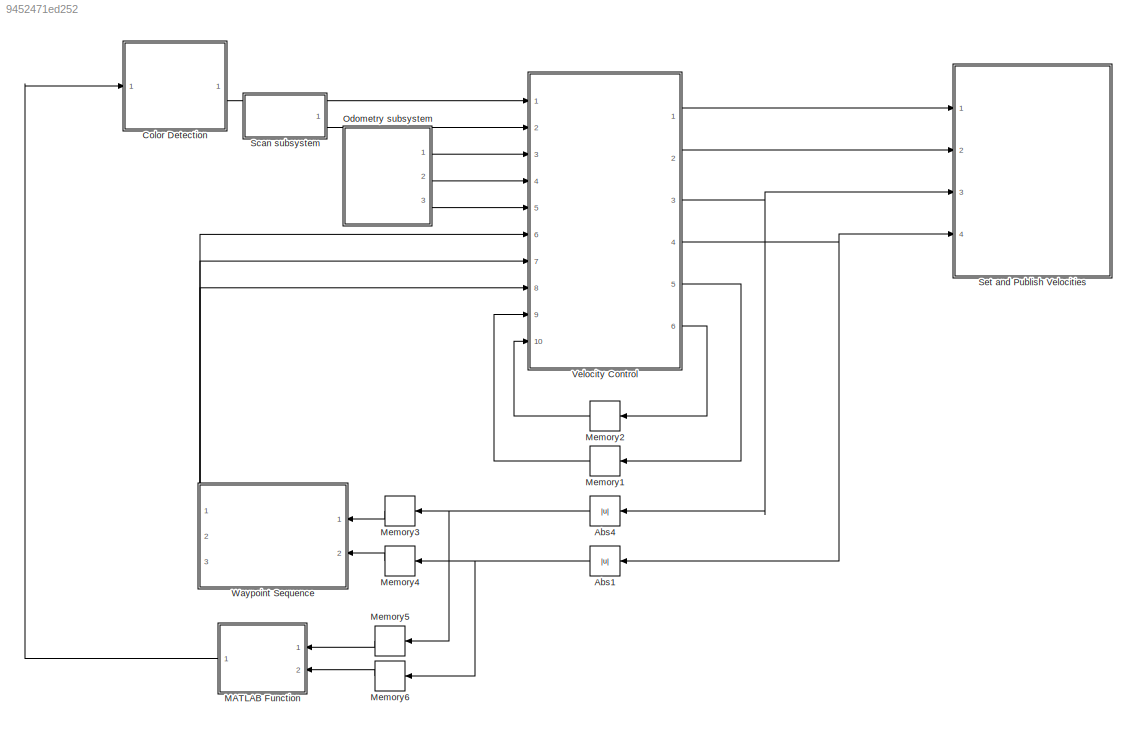
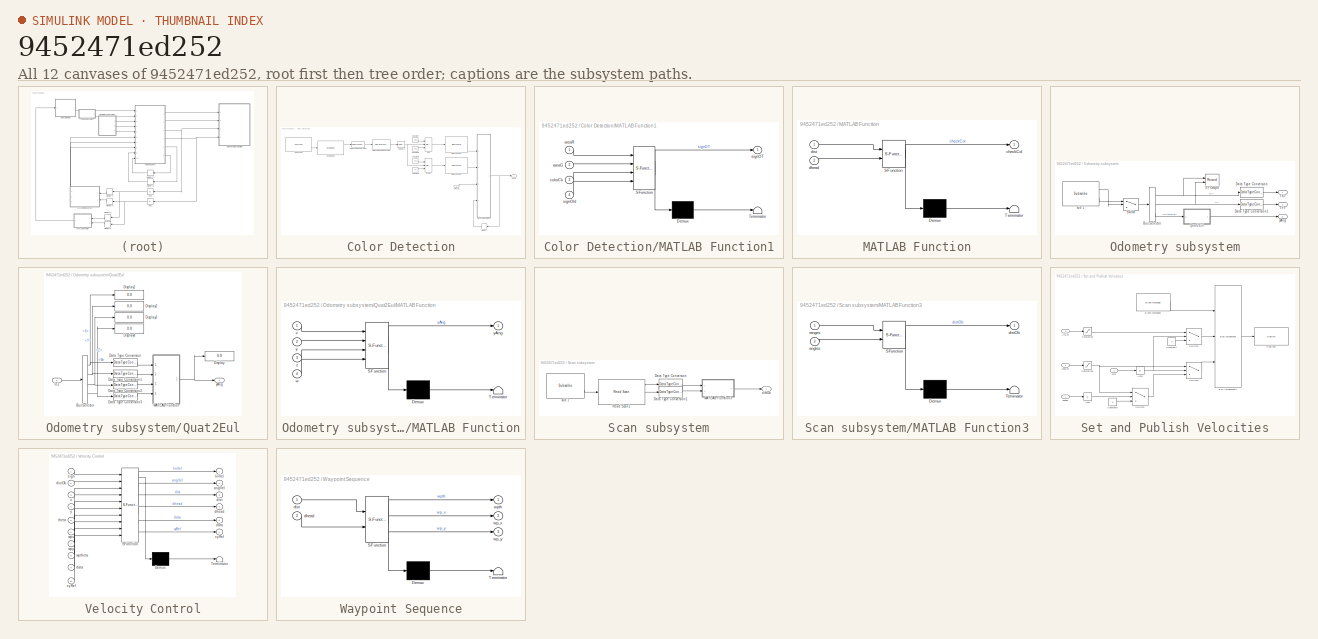
[diagram: thumbnail index - all 12 canvases of the model, root first then tree order]
MODEL slx_9452471ed252
KIND model
CONFIG AbsTol = auto
CONFIG EnableMultiTasking = off
CONFIG FixedStep = 0.05
CONFIG MaxStep = auto
CONFIG MinStep = auto
CONFIG RelTol = 1e-3
CONFIG SampleTimeConstraint = Unconstrained
CONFIG SolverName = FixedStepAuto
CONFIG StartTime = 0.0
CONFIG StopTime = inf
WORKSPACE source: mxarray member
WORKSPACE SL_ROS_VariableLengthArrays_MaxSizes: object (value not decoded)
BLOCK [Abs] Abs1
  SaturateOnIntegerOverflow = off
BLOCK [Abs] Abs4
  SaturateOnIntegerOverflow = off
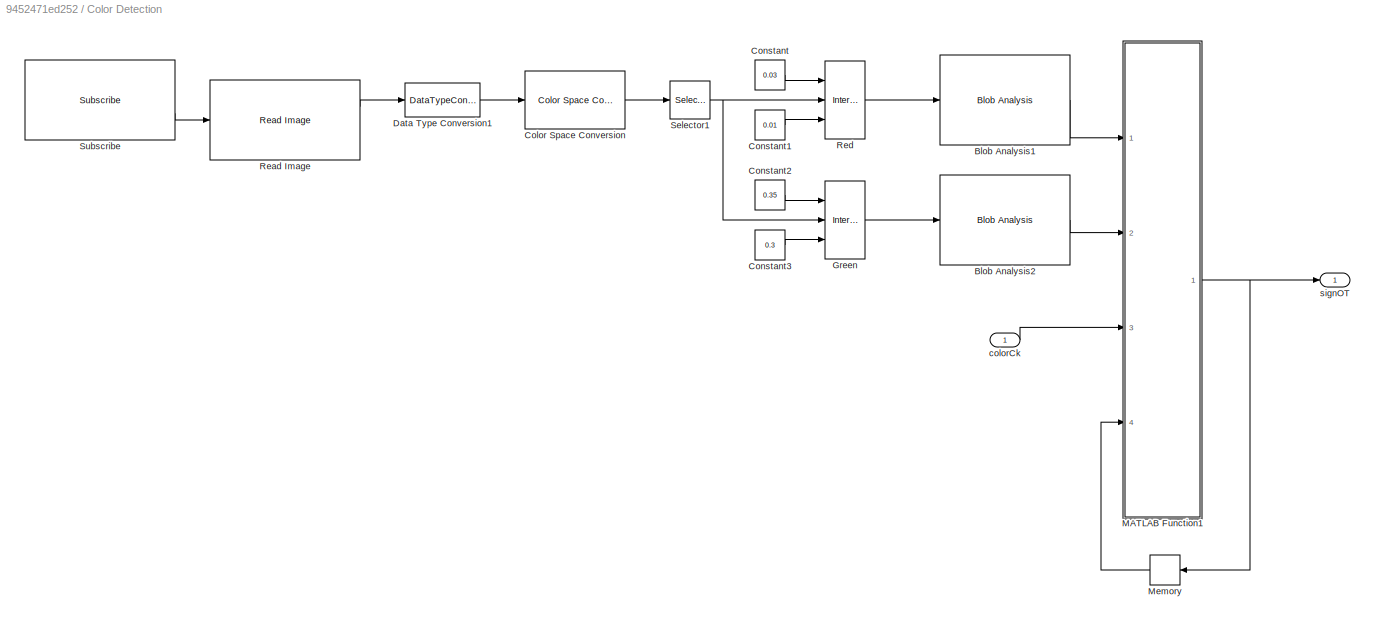
BLOCK [SubSystem] Color Detection
  Ports = [1, 1]
  RequestExecContextInheritance = off
BLOCK [Reference] Color Detection/Blob Analysis1  REF=visionstatistics/Blob Analysis
  Ports = [1, 1]
  SourceBlock = visionstatistics/Blob Analysis
  SourceProductBaseCode = VP
  SourceType = Blob Analysis
  Tag = vipblks_row_conv
BLOCK [Reference] Color Detection/Blob Analysis2  REF=visionstatistics/Blob Analysis
  Ports = [1, 1]
  SourceBlock = visionstatistics/Blob Analysis
  SourceProductBaseCode = VP
  SourceType = Blob Analysis
  Tag = vipblks_row_conv
BLOCK [Reference] Color Detection/Color Space Conversion  REF=visionconversions/Color Space
 Conversion
  Ports = [1, 1]
  SourceBlock = visionconversions/Color Space\n Conversion
  SourceProductBaseCode = VP
  SourceType = Color Space Conversion
BLOCK [Constant] Color Detection/Constant
  Value = 0.03
BLOCK [Constant] Color Detection/Constant1
  Value = 0.01
BLOCK [Constant] Color Detection/Constant2
  Value = 0.35
BLOCK [Constant] Color Detection/Constant3
  Value = 0.3
BLOCK [DataTypeConversion] Color Detection/Data Type Conversion1
  RndMeth = Floor
  SaturateOnIntegerOverflow = off
BLOCK [Reference] Color Detection/Green  REF=simulink/Logic and Bit
Operations/Interval Test
Dynamic
  Ports = [3, 1]
  SourceBlock = simulink/Logic and Bit\nOperations/Interval Test\nDynamic
  SourceProductBaseCode = SL
  SourceType = Interval Test Dynamic
BLOCK [SubSystem] Color Detection/MATLAB Function1
  ErrorFcn = Stateflow.Translate.translate
  PermitHierarchicalResolution = ExplicitOnly
  Ports = [4, 1]
  RequestExecContextInheritance = off
  SFBlockType = MATLAB Function
  TreatAsAtomicUnit = on
BLOCK [Demux] Color Detection/MATLAB Function1/ Demux 
  Outputs = 1
  Ports = [1, 1]
BLOCK [S-Function] Color Detection/MATLAB Function1/ SFunction 
  EnableBusSupport = off
  FunctionName = sf_sfun
  PortCounts = [4 2]
  Ports = [4, 2]
  SFcnIsStateOwnerBlock = off
  SFunctionDeploymentMode = off
  Tag = Stateflow S-Function 1
BLOCK [Terminator] Color Detection/MATLAB Function1/ Terminator 
BLOCK [Inport] Color Detection/MATLAB Function1/areaG
  Port = 2
BLOCK [Inport] Color Detection/MATLAB Function1/areaR
BLOCK [Inport] Color Detection/MATLAB Function1/colorCk
  Port = 3
BLOCK [Outport] Color Detection/MATLAB Function1/signOT
BLOCK [Inport] Color Detection/MATLAB Function1/signOld
  Port = 4
BLOCK [Memory] Color Detection/Memory
BLOCK [Reference] Color Detection/Read Image  REF=robotlib/Read Image
  Ports = [1, 2]
  SourceBlock = robotlib/Read Image
  SourceProductBaseCode = RR
  SourceType = ros.slros.internal.block.ReadImage
BLOCK [Reference] Color Detection/Red  REF=simulink/Logic and Bit
Operations/Interval Test
Dynamic
  Ports = [3, 1]
  SourceBlock = simulink/Logic and Bit\nOperations/Interval Test\nDynamic
  SourceProductBaseCode = SL
  SourceType = Interval Test Dynamic
BLOCK [Selector] Color Detection/Selector1
  IndexOptions = Index vector (dialog),Index vector (dialog),Index vector (dialog)
  Indices = [1:480],[1:640],1
  InputPortWidth = 3
  NumberOfDimensions = 3
  OutputSizes = 1,1,1
  Ports = [1, 1]
BLOCK [Reference] Color Detection/Subscribe  REF=robotlib/Subscribe
  Ports = [0, 2]
  SourceBlock = robotlib/Subscribe
  SourceProductBaseCode = RR
  SourceType = ROS Subscribe
BLOCK [Inport] Color Detection/colorCk
BLOCK [Outport] Color Detection/signOT
BLOCK [SubSystem] MATLAB Function
  ErrorFcn = Stateflow.Translate.translate
  PermitHierarchicalResolution = ExplicitOnly
  Ports = [2, 1]
  RequestExecContextInheritance = off
  SFBlockType = MATLAB Function
  TreatAsAtomicUnit = on
BLOCK [Demux] MATLAB Function/ Demux 
  Outputs = 1
  Ports = [1, 1]
BLOCK [S-Function] MATLAB Function/ SFunction 
  EnableBusSupport = off
  FunctionName = sf_sfun
  PortCounts = [2 2]
  Ports = [2, 2]
  SFcnIsStateOwnerBlock = off
  SFunctionDeploymentMode = off
  Tag = Stateflow S-Function 5
BLOCK [Terminator] MATLAB Function/ Terminator 
BLOCK [Outport] MATLAB Function/checkCol
BLOCK [Inport] MATLAB Function/dhead
  Port = 2
BLOCK [Inport] MATLAB Function/dist
BLOCK [Memory] Memory1
  InitialCondition = [0; 0; 0; 1; 0; 0]
BLOCK [Memory] Memory2
  InitialCondition = [0 0]
BLOCK [Memory] Memory3
  InitialCondition = 3
BLOCK [Memory] Memory4
  InitialCondition = 1
BLOCK [Memory] Memory5
BLOCK [Memory] Memory6
BLOCK [SubSystem] Odometry subsystem
  Ports = [0, 3]
  RequestExecContextInheritance = off
BLOCK [Outport] Odometry subsystem/<X>
BLOCK [Outport] Odometry subsystem/<Y>
  Port = 2
BLOCK [BusSelector] Odometry subsystem/Bus Selector
  OutputSignals = Pose.Pose.Position.X,Pose.Pose.Position.Y,Pose.Pose.Orientation
  Ports = [1, 3]
BLOCK [DataTypeConversion] Odometry subsystem/Data Type Conversion
  OutDataTypeStr = double
  RndMeth = Floor
  SaturateOnIntegerOverflow = off
BLOCK [DataTypeConversion] Odometry subsystem/Data Type Conversion1
  OutDataTypeStr = double
  RndMeth = Floor
  SaturateOnIntegerOverflow = off
BLOCK [SubSystem] Odometry subsystem/Quat2Eul
  Ports = [1, 1]
  RequestExecContextInheritance = off
BLOCK [BusSelector] Odometry subsystem/Quat2Eul/Bus Selector
  OutputSignals = X,Y,Z,W
  Ports = [1, 4]
BLOCK [DataTypeConversion] Odometry subsystem/Quat2Eul/Data Type Conversion
  OutDataTypeStr = double
  RndMeth = Floor
  SaturateOnIntegerOverflow = off
BLOCK [DataTypeConversion] Odometry subsystem/Quat2Eul/Data Type Conversion1
  OutDataTypeStr = double
  RndMeth = Floor
  SaturateOnIntegerOverflow = off
BLOCK [DataTypeConversion] Odometry subsystem/Quat2Eul/Data Type Conversion2
  OutDataTypeStr = double
  RndMeth = Floor
  SaturateOnIntegerOverflow = off
BLOCK [DataTypeConversion] Odometry subsystem/Quat2Eul/Data Type Conversion3
  OutDataTypeStr = double
  RndMeth = Floor
  SaturateOnIntegerOverflow = off
BLOCK [Display] Odometry subsystem/Quat2Eul/Display
  Decimation = 1
  Ports = [1]
BLOCK [Display] Odometry subsystem/Quat2Eul/Display1
  Decimation = 1
  Ports = [1]
BLOCK [Display] Odometry subsystem/Quat2Eul/Display2
  Decimation = 1
  Ports = [1]
BLOCK [Display] Odometry subsystem/Quat2Eul/Display3
  Decimation = 1
  Ports = [1]
BLOCK [Display] Odometry subsystem/Quat2Eul/Display4
  Decimation = 1
  Ports = [1]
BLOCK [Inport] Odometry subsystem/Quat2Eul/In1
BLOCK [SubSystem] Odometry subsystem/Quat2Eul/MATLAB Function
  ErrorFcn = Stateflow.Translate.translate
  PermitHierarchicalResolution = ExplicitOnly
  Ports = [4, 1]
  RequestExecContextInheritance = off
  SFBlockType = MATLAB Function
  TreatAsAtomicUnit = on
BLOCK [Demux] Odometry subsystem/Quat2Eul/MATLAB Function/ Demux 
  Outputs = 1
  Ports = [1, 1]
BLOCK [S-Function] Odometry subsystem/Quat2Eul/MATLAB Function/ SFunction 
  EnableBusSupport = off
  FunctionName = sf_sfun
  PortCounts = [4 2]
  Ports = [4, 2]
  SFcnIsStateOwnerBlock = off
  SFunctionDeploymentMode = off
  Tag = Stateflow S-Function 9
BLOCK [Terminator] Odometry subsystem/Quat2Eul/MATLAB Function/ Terminator 
BLOCK [Inport] Odometry subsystem/Quat2Eul/MATLAB Function/w
  Port = 4
BLOCK [Inport] Odometry subsystem/Quat2Eul/MATLAB Function/x
BLOCK [Inport] Odometry subsystem/Quat2Eul/MATLAB Function/y
  Port = 2
BLOCK [Outport] Odometry subsystem/Quat2Eul/MATLAB Function/yAng
BLOCK [Inport] Odometry subsystem/Quat2Eul/MATLAB Function/z
  Port = 3
BLOCK [Outport] Odometry subsystem/Quat2Eul/yAng
BLOCK [Switch] Odometry subsystem/Switch
  Criteria = u2 > Threshold
  InputSameDT = off
  SaturateOnIntegerOverflow = off
BLOCK [Record] Odometry subsystem/XY Graph
  CompatibilityTag = XY
  FileSettingsInternal = {"entries":[{"content":{"excelSettings":{"content":{},"type":"Streamout.ExcelSettings"}},"type":"Streamout.FileSettingStorage","uuid":"fa819d97-8a01-4fd8-bb4c-c4b8b7be5a71"}],"packageUris":["http://schema.mathworks.com/mf0/streamout_blocks/R2020a"],"version":"1.0"}
  Layout = [1 1]
  Ports = [2]
  SignalsInternal = {"entries":[{"content":{"signals":[{"content":{"blockPath":["Project3/Odometry subsystem/XY Graph"],"channel":[],"dimensions":[1],"domain":"Project3/Odometry subsystem/XY Graph","lineColor":"#a2142f","plots":[1],"port":1,"sid":[],"signalID":36,"signalName":"<X>"},"type":"RecordBlkView.Signal","uuid":"443fe2d9-428c-494c-93ec-7669d18c38f7"},{"content":{"blockPath":["Project3/Odometry subsystem/XY Gr...<+423ch>
  VisualizationBindings = {"xyplotplugin":{"info":[{"series":[{"bindingParametersList":[{"parameter":"X-Axis","signalID":36,"signalName":"<X>"},{"parameter":"Y-Axis","signalID":39,"signalName":"<Y>"}],"seriesID":3556}],"subplotID":1}]}}
  st = -1
BLOCK [Reference] Odometry subsystem/sub 1  REF=robotlib/Subscribe
  Ports = [0, 2]
  SourceBlock = robotlib/Subscribe
  SourceProductBaseCode = RR
  SourceType = ROS Subscribe
BLOCK [Outport] Odometry subsystem/yAng
  Port = 3
BLOCK [SubSystem] Scan subsystem
  Ports = [0, 1]
  RequestExecContextInheritance = off
BLOCK [DataTypeConversion] Scan subsystem/Data Type Conversion
  OutDataTypeStr = double
  RndMeth = Floor
  SaturateOnIntegerOverflow = off
BLOCK [DataTypeConversion] Scan subsystem/Data Type Conversion1
  OutDataTypeStr = double
  RndMeth = Floor
  SaturateOnIntegerOverflow = off
BLOCK [SubSystem] Scan subsystem/MATLAB Function3
  ErrorFcn = Stateflow.Translate.translate
  PermitHierarchicalResolution = ExplicitOnly
  Ports = [2, 1]
  RequestExecContextInheritance = off
  SFBlockType = MATLAB Function
  TreatAsAtomicUnit = on
BLOCK [Demux] Scan subsystem/MATLAB Function3/ Demux 
  Outputs = 1
  Ports = [1, 1]
BLOCK [S-Function] Scan subsystem/MATLAB Function3/ SFunction 
  EnableBusSupport = off
  FunctionName = sf_sfun
  PortCounts = [2 2]
  Ports = [2, 2]
  SFcnIsStateOwnerBlock = off
  SFunctionDeploymentMode = off
  Tag = Stateflow S-Function 7
BLOCK [Terminator] Scan subsystem/MATLAB Function3/ Terminator 
BLOCK [Inport] Scan subsystem/MATLAB Function3/angles
  Port = 2
BLOCK [Outport] Scan subsystem/MATLAB Function3/distOb
BLOCK [Inport] Scan subsystem/MATLAB Function3/ranges
BLOCK [Reference] Scan subsystem/Read Scan1  REF=robotlib/Read Scan
  Ports = [1, 3]
  SourceBlock = robotlib/Read Scan
  SourceProductBaseCode = RR
  SourceType = ros.slros.internal.block.ReadScan
BLOCK [Outport] Scan subsystem/distOb
BLOCK [Reference] Scan subsystem/sub 1  REF=robotlib/Subscribe
  Ports = [0, 2]
  SourceBlock = robotlib/Subscribe
  SourceProductBaseCode = RR
  SourceType = ROS Subscribe
BLOCK [SubSystem] Set and Publish Velocities
  Ports = [4]
  RequestExecContextInheritance = off
BLOCK [Abs] Set and Publish Velocities/Abs2
  SaturateOnIntegerOverflow = off
BLOCK [Abs] Set and Publish Velocities/Abs3
  SaturateOnIntegerOverflow = off
BLOCK [Reference] Set and Publish Velocities/Blank Message1  REF=robotlib/Blank Message
  Ports = [0, 1]
  SourceBlock = robotlib/Blank Message
  SourceProductBaseCode = RR
  SourceType = ROS Blank Message
BLOCK [BusAssignment] Set and Publish Velocities/Bus Assignment1
  AssignedSignals = Linear.X,Angular.Z
  DialogController = Simulink.DDGSource_BusAssignment
  Ports = [3, 1]
BLOCK [Constant] Set and Publish Velocities/Constant3
  Value = 0
BLOCK [Constant] Set and Publish Velocities/Constant5
  Value = 0
BLOCK [Reference] Set and Publish Velocities/Publish2  REF=robotlib/Publish
  AttributesFormatString = %<messageType>
  Ports = [1]
  SourceBlock = robotlib/Publish
  SourceProductBaseCode = RR
  SourceType = ROS Publish
BLOCK [Saturate] Set and Publish Velocities/Saturation
  LowerLimit = -0.1
  UpperLimit = 0.1
BLOCK [Saturate] Set and Publish Velocities/Saturation1
  LowerLimit = -0.4
  UpperLimit = 0.4
BLOCK [Switch] Set and Publish Velocities/Switch1
  Criteria = u2 > Threshold
  InputSameDT = off
  SaturateOnIntegerOverflow = off
  Threshold = 0.05
BLOCK [Switch] Set and Publish Velocities/Switch2
  Criteria = u2 > Threshold
  InputSameDT = off
  SaturateOnIntegerOverflow = off
  Threshold = 0.05
BLOCK [Switch] Set and Publish Velocities/Switch3
  Criteria = u2 > Threshold
  InputSameDT = off
  SaturateOnIntegerOverflow = off
  Threshold = 0.05
BLOCK [Inport] Set and Publish Velocities/angVel
  Port = 2
BLOCK [Inport] Set and Publish Velocities/dhead
  Port = 4
BLOCK [Inport] Set and Publish Velocities/dist
  Port = 3
BLOCK [Inport] Set and Publish Velocities/linVel
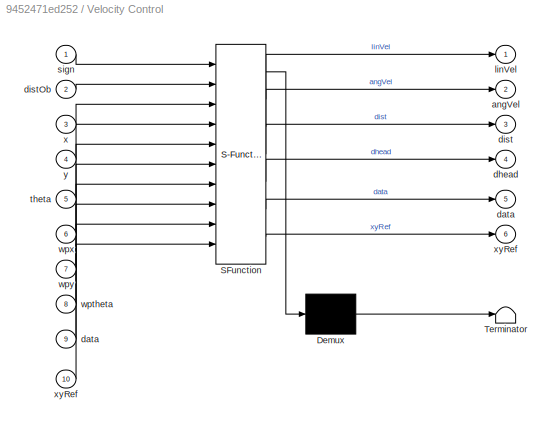
BLOCK [SubSystem] Velocity Control
  ErrorFcn = Stateflow.Translate.translate
  PermitHierarchicalResolution = ExplicitOnly
  Ports = [10, 6]
  RequestExecContextInheritance = off
  SFBlockType = MATLAB Function
  TreatAsAtomicUnit = on
BLOCK [Demux] Velocity Control/ Demux 
  Outputs = 1
  Ports = [1, 1]
BLOCK [S-Function] Velocity Control/ SFunction 
  EnableBusSupport = off
  FunctionName = sf_sfun
  PortCounts = [10 7]
  Ports = [10, 7]
  SFcnIsStateOwnerBlock = off
  SFunctionDeploymentMode = off
  Tag = Stateflow S-Function 8
BLOCK [Terminator] Velocity Control/ Terminator 
BLOCK [Outport] Velocity Control/angVel
  Port = 2
BLOCK [Outport] Velocity Control/data
  Port = 5
BLOCK [Inport] Velocity Control/data 
  Port = 9
BLOCK [Outport] Velocity Control/dhead
  Port = 4
BLOCK [Outport] Velocity Control/dist
  Port = 3
BLOCK [Inport] Velocity Control/distOb
  Port = 2
BLOCK [Outport] Velocity Control/linVel
BLOCK [Inport] Velocity Control/sign
BLOCK [Inport] Velocity Control/theta
  Port = 5
BLOCK [Inport] Velocity Control/wptheta
  Port = 8
BLOCK [Inport] Velocity Control/wpx
  Port = 6
BLOCK [Inport] Velocity Control/wpy
  Port = 7
BLOCK [Inport] Velocity Control/x
  Port = 3
BLOCK [Outport] Velocity Control/xyRef
  Port = 6
BLOCK [Inport] Velocity Control/xyRef 
  Port = 10
BLOCK [Inport] Velocity Control/y
  Port = 4
BLOCK [SubSystem] Waypoint Sequence
  ErrorFcn = Stateflow.Translate.translate
  PermitHierarchicalResolution = ExplicitOnly
  PortSchema = {"entries":[{"content":{"sides":[{"content":{"connectorIds":["In1","In2"]},"type":"ConnectorPlacement.EquallySpacedRectSide","uuid":"3c0b8c44-7056-474e-88d4-c274adb67b29"},{"content":{"connectorIds":[],"side":"RIGHT"},"type":"ConnectorPlacement.EquallySpacedRectSide","uuid":"34274f05-3395-441e-bdde-745717c201d9"},{"content":{"connectorIds":["Out1","Out3","Out2"],"side":"TOP"},"type":"ConnectorPlac...<+260ch>
  Ports = [2, 3]
  RequestExecContextInheritance = off
  SFBlockType = Chart
  TreatAsAtomicUnit = on
BLOCK [Demux] Waypoint Sequence/ Demux 
  Outputs = 1
  Ports = [1, 1]
BLOCK [S-Function] Waypoint Sequence/ SFunction 
  EnableBusSupport = off
  FunctionName = sf_sfun
  PortCounts = [2 4]
  Ports = [2, 4]
  SFcnIsStateOwnerBlock = off
  SFunctionDeploymentMode = off
  Tag = Stateflow S-Function 6
BLOCK [Terminator] Waypoint Sequence/ Terminator 
BLOCK [Inport] Waypoint Sequence/dhead
  Port = 2
BLOCK [Inport] Waypoint Sequence/dist
BLOCK [Outport] Waypoint Sequence/wp_x
  Port = 2
  VectorParamsAs1DForOutWhenUnconnected = off
BLOCK [Outport] Waypoint Sequence/wp_y
  Port = 3
  VectorParamsAs1DForOutWhenUnconnected = off
BLOCK [Outport] Waypoint Sequence/wpth
NET Abs1:1 -> Memory4:1, Memory6:1
NET Abs4:1 -> Memory3:1, Memory5:1
LINE Color Detection/Blob Analysis1:1 -> Color Detection/MATLAB Function1:1
LINE Color Detection/Blob Analysis2:1 -> Color Detection/MATLAB Function1:2
LINE Color Detection/Color Space Conversion:1 -> Color Detection/Selector1:1
LINE Color Detection/Constant1:1 -> Color Detection/Red:3
LINE Color Detection/Constant2:1 -> Color Detection/Green:1
LINE Color Detection/Constant3:1 -> Color Detection/Green:3
LINE Color Detection/Constant:1 -> Color Detection/Red:1
LINE Color Detection/Data Type Conversion1:1 -> Color Detection/Color Space Conversion:1
LINE Color Detection/Green:1 -> Color Detection/Blob Analysis2:1
NET Color Detection/MATLAB Function1:1 -> Color Detection/Memory:1, Color Detection/signOT:1
LINE Color Detection/Memory:1 -> Color Detection/MATLAB Function1:4
LINE Color Detection/Read Image:1 -> Color Detection/Data Type Conversion1:1
LINE Color Detection/Red:1 -> Color Detection/Blob Analysis1:1
NET Color Detection/Selector1:1 -> Color Detection/Green:2, Color Detection/Red:2
LINE Color Detection/Subscribe:2 -> Color Detection/Read Image:1
LINE Color Detection/colorCk:1 -> Color Detection/MATLAB Function1:3
LINE Color Detection:1 -> Velocity Control:1
LINE MATLAB Function:1 -> Color Detection:1
LINE Memory1:1 -> Velocity Control:9
LINE Memory2:1 -> Velocity Control:10
LINE Memory3:1 -> Waypoint Sequence:1
LINE Memory4:1 -> Waypoint Sequence:2
LINE Memory5:1 -> MATLAB Function:1
LINE Memory6:1 -> MATLAB Function:2
NET Odometry subsystem/Bus Selector:1 -> Odometry subsystem/Data Type Conversion:1, Odometry subsystem/XY Graph:1
NET Odometry subsystem/Bus Selector:2 -> Odometry subsystem/Data Type Conversion1:1, Odometry subsystem/XY Graph:2
LINE Odometry subsystem/Bus Selector:3 -> Odometry subsystem/Quat2Eul:1
LINE Odometry subsystem/Data Type Conversion1:1 -> Odometry subsystem/<Y>:1
LINE Odometry subsystem/Data Type Conversion:1 -> Odometry subsystem/<X>:1
NET Odometry subsystem/Quat2Eul/Bus Selector:1 -> Odometry subsystem/Quat2Eul/Data Type Conversion:1, Odometry subsystem/Quat2Eul/Display1:1
NET Odometry subsystem/Quat2Eul/Bus Selector:2 -> Odometry subsystem/Quat2Eul/Data Type Conversion1:1, Odometry subsystem/Quat2Eul/Display2:1
NET Odometry subsystem/Quat2Eul/Bus Selector:3 -> Odometry subsystem/Quat2Eul/Data Type Conversion2:1, Odometry subsystem/Quat2Eul/Display3:1
NET Odometry subsystem/Quat2Eul/Bus Selector:4 -> Odometry subsystem/Quat2Eul/Data Type Conversion3:1, Odometry subsystem/Quat2Eul/Display4:1
LINE Odometry subsystem/Quat2Eul/Data Type Conversion1:1 -> Odometry subsystem/Quat2Eul/MATLAB Function:2
LINE Odometry subsystem/Quat2Eul/Data Type Conversion2:1 -> Odometry subsystem/Quat2Eul/MATLAB Function:3
LINE Odometry subsystem/Quat2Eul/Data Type Conversion3:1 -> Odometry subsystem/Quat2Eul/MATLAB Function:4
LINE Odometry subsystem/Quat2Eul/Data Type Conversion:1 -> Odometry subsystem/Quat2Eul/MATLAB Function:1
LINE Odometry subsystem/Quat2Eul/In1:1 -> Odometry subsystem/Quat2Eul/Bus Selector:1
NET Odometry subsystem/Quat2Eul/MATLAB Function:1 -> Odometry subsystem/Quat2Eul/Display:1, Odometry subsystem/Quat2Eul/yAng:1
LINE Odometry subsystem/Quat2Eul:1 -> Odometry subsystem/yAng:1
LINE Odometry subsystem/Switch:1 -> Odometry subsystem/Bus Selector:1
LINE Odometry subsystem/sub 1:1 -> Odometry subsystem/Switch:2
LINE Odometry subsystem/sub 1:2 -> Odometry subsystem/Switch:1
LINE Odometry subsystem:1 -> Velocity Control:3
LINE Odometry subsystem:2 -> Velocity Control:4
LINE Odometry subsystem:3 -> Velocity Control:5
LINE Scan subsystem/Data Type Conversion1:1 -> Scan subsystem/MATLAB Function3:2
LINE Scan subsystem/Data Type Conversion:1 -> Scan subsystem/MATLAB Function3:1
LINE Scan subsystem/MATLAB Function3:1 -> Scan subsystem/distOb:1
LINE Scan subsystem/Read Scan1:1 -> Scan subsystem/Data Type Conversion:1
LINE Scan subsystem/Read Scan1:2 -> Scan subsystem/Data Type Conversion1:1
LINE Scan subsystem/sub 1:2 -> Scan subsystem/Read Scan1:1
LINE Scan subsystem:1 -> Velocity Control:2
LINE Set and Publish Velocities/Abs2:1 -> Set and Publish Velocities/Switch1:2
NET Set and Publish Velocities/Abs3:1 -> Set and Publish Velocities/Switch2:2, Set and Publish Velocities/Switch3:2
LINE Set and Publish Velocities/Blank Message1:1 -> Set and Publish Velocities/Bus Assignment1:1
LINE Set and Publish Velocities/Bus Assignment1:1 -> Set and Publish Velocities/Publish2:1
LINE Set and Publish Velocities/Constant3:1 -> Set and Publish Velocities/Switch2:3
LINE Set and Publish Velocities/Constant5:1 -> Set and Publish Velocities/Switch1:3
NET Set and Publish Velocities/Saturation1:1 -> Set and Publish Velocities/Switch1:1, Set and Publish Velocities/Switch3:1
LINE Set and Publish Velocities/Saturation:1 -> Set and Publish Velocities/Switch2:1
LINE Set and Publish Velocities/Switch1:1 -> Set and Publish Velocities/Switch3:3
LINE Set and Publish Velocities/Switch2:1 -> Set and Publish Velocities/Bus Assignment1:2
LINE Set and Publish Velocities/Switch3:1 -> Set and Publish Velocities/Bus Assignment1:3
LINE Set and Publish Velocities/angVel:1 -> Set and Publish Velocities/Saturation1:1
LINE Set and Publish Velocities/dhead:1 -> Set and Publish Velocities/Abs2:1
LINE Set and Publish Velocities/dist:1 -> Set and Publish Velocities/Abs3:1
LINE Set and Publish Velocities/linVel:1 -> Set and Publish Velocities/Saturation:1
LINE Velocity Control:1 -> Set and Publish Velocities:1
LINE Velocity Control:2 -> Set and Publish Velocities:2
NET Velocity Control:3 -> Abs4:1, Set and Publish Velocities:3
NET Velocity Control:4 -> Abs1:1, Set and Publish Velocities:4
LINE Velocity Control:5 -> Memory1:1
LINE Velocity Control:6 -> Memory2:1
LINE Waypoint Sequence:1 -> Velocity Control:8
LINE Waypoint Sequence:2 -> Velocity Control:6
LINE Waypoint Sequence:3 -> Velocity Control:7
note: NET lines group one-source signal fan-out (src -> all destinations, sorted); 1:1 wires keep LINE
CHART Odometry subsystem/Quat2Eul/MATLAB Function states=1 transitions=1
  STATE_LABEL 'eML_blk_kernel()'
  STATE_LABEL 'SCRIPT:\nfunction yAng = conversAngle(x,y,z,w)\neulAngle = quat2eul([w,x,y,z]);\nyAng = eulAngle(1);\ncheck = isnan(yAng);\nif check == 1\n    yAng = 0;\nend\nend\n'
CHART Color Detection/MATLAB Function1 states=1 transitions=1
  STATE_LABEL 'eML_blk_kernel()'
  STATE_LABEL 'SCRIPT:\nfunction signOT  = fcn(areaR,areaG,colorCk,signOld)\n\n[maxAreaG,iG] = max(areaG);\n[maxAreaR,iR] = max(areaR);\n\nif colorCk == 1\n    if ~isempty(iG) && ~isempty(iR) \n        if maxAreaR > maxAreaG\n            signOT =-1;\n        elseif maxAreaG > maxAreaR\n            signOT = 1;\n        else\n            signOT = signOld;\n        end\n    else \n        signOT = signOld;\n    end\nelse\n    signOT ...<+16ch>'
CHART MATLAB Function states=1 transitions=1
  STATE_LABEL 'eML_blk_kernel()'
  STATE_LABEL 'SCRIPT:\nfunction checkCol = fcn(dist,dhead)\nif dist<0.05 && dhead<0.05\n    checkCol = 1;\nelse\n    checkCol = 0;\nend\nend\n'
CHART Waypoint Sequence states=6 transitions=7
  STATE_LABEL 'Waypoint1\nentry: wp_x=4; wp_y=0; wpth = pi/2;\n'
  STATE_LABEL 'Waypoint2\nentry: wp_x=4; wp_y=4; wpth = pi/2;'
  STATE_LABEL 'Waypoint3\nentry: wp_x=4; wp_y=8; wpth = 0;'
  STATE_LABEL 'Waypoint4\nentry: wp_x=8; wp_y=8; wpth =3*pi/2;'
  STATE_LABEL 'Waypoint5\nentry: wp_x=8; wp_y=4; wpth = 3*pi/2;'
  STATE_LABEL 'Waypoint6\nentry: wp_x=8; wp_y=0; wpth = 3*pi/2;'
CHART Scan subsystem/MATLAB Function3 states=1 transitions=1
  STATE_LABEL 'eML_blk_kernel()'
  STATE_LABEL 'SCRIPT:\nfunction distOb  = fcn(ranges,angles)\nif any(ranges>0)\n    xOb     = ranges.*cos(angles);\n    yOb     = ranges.*sin(angles);\n    % only return finite values\n    xObVal     = xOb(isfinite(xOb));\n    yObVal     = yOb(isfinite(yOb));\n    distOb  = min(sqrt(xObVal.^2 + yObVal.^2));\nelse\n    distOb = 0;\nend\n'
CHART Velocity Control states=1 transitions=1
  STATE_LABEL 'eML_blk_kernel()'
  STATE_LABEL 'SCRIPT:\nfunction [linVel,angVel,dist,dhead,data,xyRef] = fcn(sign,distOb,x,y,theta,wpx,wpy,wptheta,data,xyRef)\ncheck   = data(1);\ncheckP  = data(2);\nR       = data(3);\ndistOT  = data(4);\ndistRef = data(5);\ntheta0  = data(6);\n\ndist    = sqrt((x - wpx)^2 + (y - wpy)^2);\ncourse  = atan2(wpy - y,wpx - x);\n\nkpv     = 0.07;\nkpw     = 0.07;\n\nif distOb < 1 && distOb > 0\n     distOT = distOb;\nend\n\nif distO...<+1381ch>'
CHART  states=0 transitions=0
CHART  states=0 transitions=0
CHART  states=0 transitions=0
CHART  states=0 transitions=0
CHART  states=0 transitions=0
CHART  states=0 transitions=0
